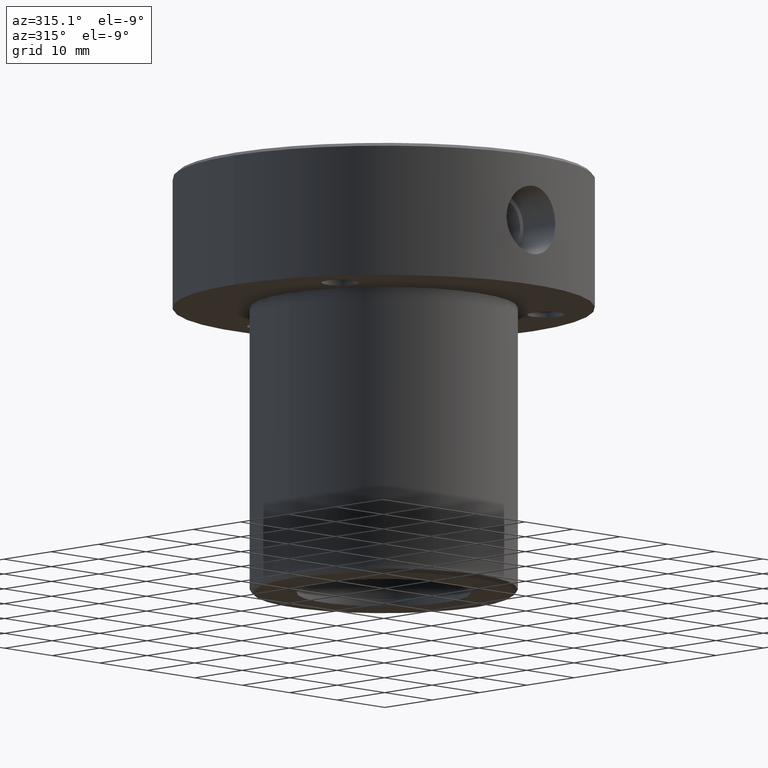
[diagram: clean part render]
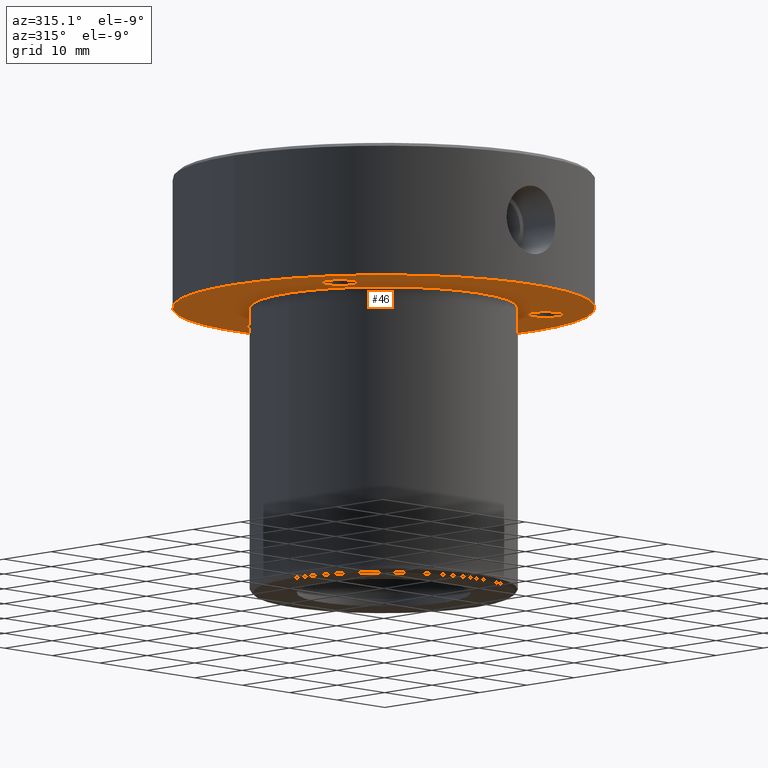
[diagram: same view with one face highlighted and labeled with its STEP entity id]
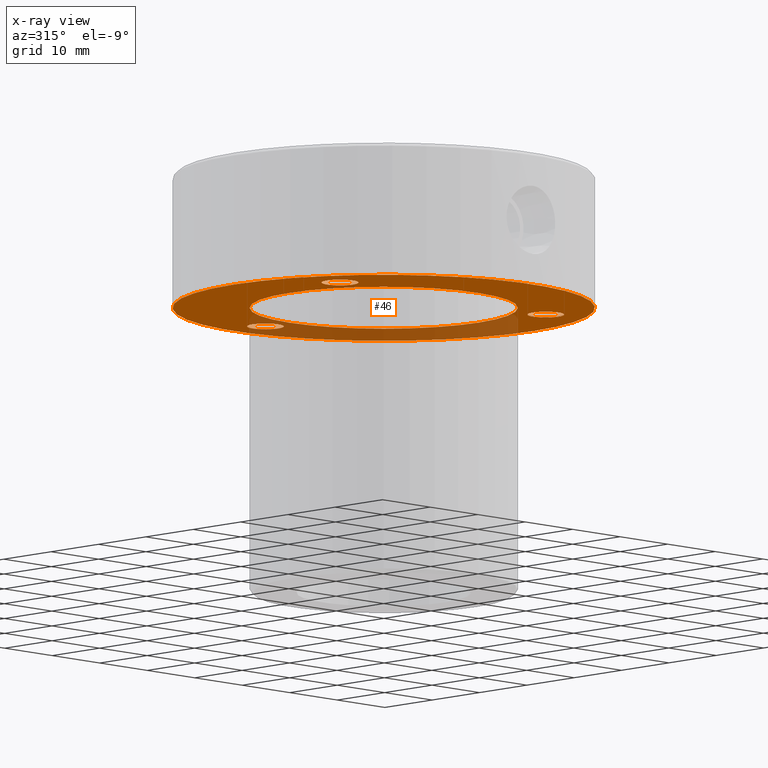
[diagram: x-ray of the same camera — body ghosted, the highlighted face saturated]
A machine part, auxiliary view. The second image highlights one B-rep face of the part: STEP entity #46.
The next image is the same camera in x-ray: the body ghosted, the highlighted face saturated — about 29% of this face is hidden behind the body in this view.
In plain terms, the highlighted planar face has unit normal (0, 0, -1).
Its self-contained STEP definition (entity closure, byte-faithful):
#11 = EDGE_CURVE ( 'NONE', #47, #1001, #1193, .T. ) ;
#29 = DIRECTION ( 'NONE',  ( 0.000000000000000000, 0.000000000000000000, -1.000000000000000000 ) ) ;
#41 = EDGE_CURVE ( 'NONE', #1001, #47, #950, .T. ) ;
#45 = CARTESIAN_POINT ( 'NONE',  ( 21.65063509461091940, -12.50000000000010125, -20.00000000000000000 ) ) ;
#46 = ADVANCED_FACE ( 'NONE', ( #220, #889, #241, #224, #1098 ), #1011, .T. ) ;
#47 = VERTEX_POINT ( 'NONE', #315 ) ;
#100 = DIRECTION ( 'NONE',  ( 0.000000000000000000, 0.000000000000000000, -1.000000000000000000 ) ) ;
#120 = VERTEX_POINT ( 'NONE', #363 ) ;
#122 = ORIENTED_EDGE ( 'NONE', *, *, #172, .T. ) ;
#129 = ORIENTED_EDGE ( 'NONE', *, *, #382, .F. ) ;
#141 = DIRECTION ( 'NONE',  ( 0.000000000000000000, 0.000000000000000000, -1.000000000000000000 ) ) ;
#145 = DIRECTION ( 'NONE',  ( -1.000000000000000000, 0.000000000000000000, 0.000000000000000000 ) ) ;
#154 = DIRECTION ( 'NONE',  ( 1.000000000000000000, 0.000000000000000000, 0.000000000000000000 ) ) ;
#161 = VERTEX_POINT ( 'NONE', #1123 ) ;
#163 = CARTESIAN_POINT ( 'NONE',  ( 21.65063509461091940, -12.50000000000010125, -20.00000000000000000 ) ) ;
#165 = EDGE_CURVE ( 'NONE', #1211, #1095, #925, .T. ) ;
#171 = DIRECTION ( 'NONE',  ( 1.000000000000000000, 0.000000000000000000, 0.000000000000000000 ) ) ;
#172 = EDGE_CURVE ( 'NONE', #906, #993, #1168, .T. ) ;
#178 = DIRECTION ( 'NONE',  ( 1.000000000000000000, 0.000000000000000000, 0.000000000000000000 ) ) ;
#189 = VERTEX_POINT ( 'NONE', #917 ) ;
#200 = CARTESIAN_POINT ( 'NONE',  ( 0.000000000000000000, 0.000000000000000000, -20.00000000000000000 ) ) ;
#220 = FACE_BOUND ( 'NONE', #819, .T. ) ;
#224 = FACE_BOUND ( 'NONE', #1225, .T. ) ;
#228 = EDGE_LOOP ( 'NONE', ( #277, #953 ) ) ;
#241 = FACE_BOUND ( 'NONE', #740, .T. ) ;
#242 = VERTEX_POINT ( 'NONE', #388 ) ;
#277 = ORIENTED_EDGE ( 'NONE', *, *, #1073, .F. ) ;
#281 = ORIENTED_EDGE ( 'NONE', *, *, #697, .F. ) ;
#308 = CARTESIAN_POINT ( 'NONE',  ( -20.00000000000000000, 2.449293598294706513E-15, -20.00000000000000000 ) ) ;
#315 = CARTESIAN_POINT ( 'NONE',  ( -24.40063509461099756, -12.49999999999995381, -20.00000000000000000 ) ) ;
#320 = CIRCLE ( 'NONE', #364, 2.749999999999995559 ) ;
#363 = CARTESIAN_POINT ( 'NONE',  ( 31.50000000000000000, 0.000000000000000000, -20.00000000000000000 ) ) ;
#364 = AXIS2_PLACEMENT_3D ( 'NONE', #45, #29, #699 ) ;
#382 = EDGE_CURVE ( 'NONE', #1095, #1211, #900, .T. ) ;
#387 = AXIS2_PLACEMENT_3D ( 'NONE', #904, #733, #154 ) ;
#388 = CARTESIAN_POINT ( 'NONE',  ( -31.50000000000000000, 3.857637417314162689E-15, -20.00000000000000000 ) ) ;
#389 = EDGE_CURVE ( 'NONE', #189, #161, #320, .T. ) ;
#397 = AXIS2_PLACEMENT_3D ( 'NONE', #200, #871, #412 ) ;
#412 = DIRECTION ( 'NONE',  ( 1.000000000000000000, 0.000000000000000000, 0.000000000000000000 ) ) ;
#420 = DIRECTION ( 'NONE',  ( 0.000000000000000000, 0.000000000000000000, -1.000000000000000000 ) ) ;
#426 = DIRECTION ( 'NONE',  ( 0.000000000000000000, 0.000000000000000000, -1.000000000000000000 ) ) ;
#430 = CARTESIAN_POINT ( 'NONE',  ( 0.000000000000000000, 25.00000000000001066, -20.00000000000000000 ) ) ;
#457 = CIRCLE ( 'NONE', #1092, 31.50000000000000000 ) ;
#484 = DIRECTION ( 'NONE',  ( -0.000000000000000000, -0.000000000000000000, 1.000000000000000000 ) ) ;
#519 = CARTESIAN_POINT ( 'NONE',  ( 20.00000000000000000, 0.000000000000000000, -20.00000000000000000 ) ) ;
#584 = CARTESIAN_POINT ( 'NONE',  ( 0.000000000000000000, 25.00000000000001066, -20.00000000000000000 ) ) ;
#612 = DIRECTION ( 'NONE',  ( 0.000000000000000000, 0.000000000000000000, -1.000000000000000000 ) ) ;
#616 = ORIENTED_EDGE ( 'NONE', *, *, #165, .F. ) ;
#619 = CIRCLE ( 'NONE', #654, 20.00000000000000000 ) ;
#622 = DIRECTION ( 'NONE',  ( -1.000000000000000000, 0.000000000000000000, 0.000000000000000000 ) ) ;
#654 = AXIS2_PLACEMENT_3D ( 'NONE', #1128, #747, #171 ) ;
#662 = CARTESIAN_POINT ( 'NONE',  ( -2.749999999999995559, 25.00000000000001066, -20.00000000000000000 ) ) ;
#688 = EDGE_CURVE ( 'NONE', #993, #906, #619, .T. ) ;
#697 = EDGE_CURVE ( 'NONE', #242, #120, #457, .T. ) ;
#699 = DIRECTION ( 'NONE',  ( -1.000000000000000000, 0.000000000000000000, 0.000000000000000000 ) ) ;
#711 = AXIS2_PLACEMENT_3D ( 'NONE', #1106, #420, #801 ) ;
#721 = CIRCLE ( 'NONE', #884, 2.749999999999995559 ) ;
#726 = ORIENTED_EDGE ( 'NONE', *, *, #971, .F. ) ;
#733 = DIRECTION ( 'NONE',  ( -0.000000000000000000, -0.000000000000000000, 1.000000000000000000 ) ) ;
#740 = EDGE_LOOP ( 'NONE', ( #129, #616 ) ) ;
#747 = DIRECTION ( 'NONE',  ( -0.000000000000000000, -0.000000000000000000, 1.000000000000000000 ) ) ;
#760 = ORIENTED_EDGE ( 'NONE', *, *, #41, .F. ) ;
#801 = DIRECTION ( 'NONE',  ( -1.000000000000000000, 0.000000000000000000, 0.000000000000000000 ) ) ;
#807 = CARTESIAN_POINT ( 'NONE',  ( 0.000000000000000000, 31.50000000000000000, -20.00000000000000000 ) ) ;
#813 = DIRECTION ( 'NONE',  ( -1.000000000000000000, 0.000000000000000000, 0.000000000000000000 ) ) ;
#819 = EDGE_LOOP ( 'NONE', ( #760, #861 ) ) ;
#827 = AXIS2_PLACEMENT_3D ( 'NONE', #430, #1012, #813 ) ;
#861 = ORIENTED_EDGE ( 'NONE', *, *, #11, .F. ) ;
#871 = DIRECTION ( 'NONE',  ( -0.000000000000000000, -0.000000000000000000, 1.000000000000000000 ) ) ;
#884 = AXIS2_PLACEMENT_3D ( 'NONE', #163, #426, #145 ) ;
#889 = FACE_BOUND ( 'NONE', #228, .T. ) ;
#891 = DIRECTION ( 'NONE',  ( -1.000000000000000000, 0.000000000000000000, 0.000000000000000000 ) ) ;
#900 = CIRCLE ( 'NONE', #1130, 2.749999999999995559 ) ;
#904 = CARTESIAN_POINT ( 'NONE',  ( 0.000000000000000000, 0.000000000000000000, -20.00000000000000000 ) ) ;
#906 = VERTEX_POINT ( 'NONE', #519 ) ;
#917 = CARTESIAN_POINT ( 'NONE',  ( 18.90063509461092295, -12.50000000000010125, -20.00000000000000000 ) ) ;
#920 = CARTESIAN_POINT ( 'NONE',  ( 2.749999999999995559, 25.00000000000001066, -20.00000000000000000 ) ) ;
#925 = CIRCLE ( 'NONE', #827, 2.749999999999995559 ) ;
#935 = CIRCLE ( 'NONE', #397, 31.50000000000000000 ) ;
#946 = AXIS2_PLACEMENT_3D ( 'NONE', #807, #612, #1208 ) ;
#950 = CIRCLE ( 'NONE', #711, 2.749999999999995559 ) ;
#953 = ORIENTED_EDGE ( 'NONE', *, *, #389, .F. ) ;
#971 = EDGE_CURVE ( 'NONE', #120, #242, #935, .T. ) ;
#975 = CARTESIAN_POINT ( 'NONE',  ( -18.90063509461100466, -12.49999999999995381, -20.00000000000000000 ) ) ;
#993 = VERTEX_POINT ( 'NONE', #308 ) ;
#1001 = VERTEX_POINT ( 'NONE', #975 ) ;
#1011 = PLANE ( 'NONE',  #946 ) ;
#1012 = DIRECTION ( 'NONE',  ( 0.000000000000000000, 0.000000000000000000, -1.000000000000000000 ) ) ;
#1069 = AXIS2_PLACEMENT_3D ( 'NONE', #1113, #141, #622 ) ;
#1073 = EDGE_CURVE ( 'NONE', #161, #189, #721, .T. ) ;
#1092 = AXIS2_PLACEMENT_3D ( 'NONE', #1148, #484, #178 ) ;
#1095 = VERTEX_POINT ( 'NONE', #920 ) ;
#1098 = FACE_OUTER_BOUND ( 'NONE', #1112, .T. ) ;
#1106 = CARTESIAN_POINT ( 'NONE',  ( -21.65063509461100111, -12.49999999999995381, -20.00000000000000000 ) ) ;
#1108 = ORIENTED_EDGE ( 'NONE', *, *, #688, .T. ) ;
#1112 = EDGE_LOOP ( 'NONE', ( #726, #281 ) ) ;
#1113 = CARTESIAN_POINT ( 'NONE',  ( -21.65063509461100111, -12.49999999999995381, -20.00000000000000000 ) ) ;
#1123 = CARTESIAN_POINT ( 'NONE',  ( 24.40063509461091229, -12.50000000000010125, -20.00000000000000000 ) ) ;
#1128 = CARTESIAN_POINT ( 'NONE',  ( 0.000000000000000000, 0.000000000000000000, -20.00000000000000000 ) ) ;
#1130 = AXIS2_PLACEMENT_3D ( 'NONE', #584, #100, #891 ) ;
#1148 = CARTESIAN_POINT ( 'NONE',  ( 0.000000000000000000, 0.000000000000000000, -20.00000000000000000 ) ) ;
#1168 = CIRCLE ( 'NONE', #387, 20.00000000000000000 ) ;
#1193 = CIRCLE ( 'NONE', #1069, 2.749999999999995559 ) ;
#1208 = DIRECTION ( 'NONE',  ( -1.000000000000000000, 0.000000000000000000, -0.000000000000000000 ) ) ;
#1211 = VERTEX_POINT ( 'NONE', #662 ) ;
#1225 = EDGE_LOOP ( 'NONE', ( #122, #1108 ) ) ;